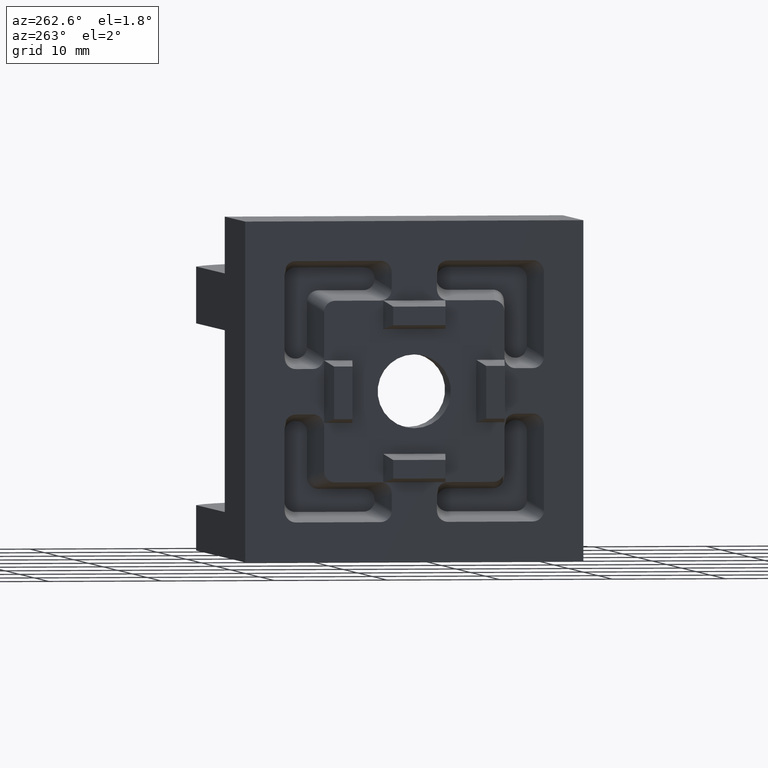
[diagram: clean part render]
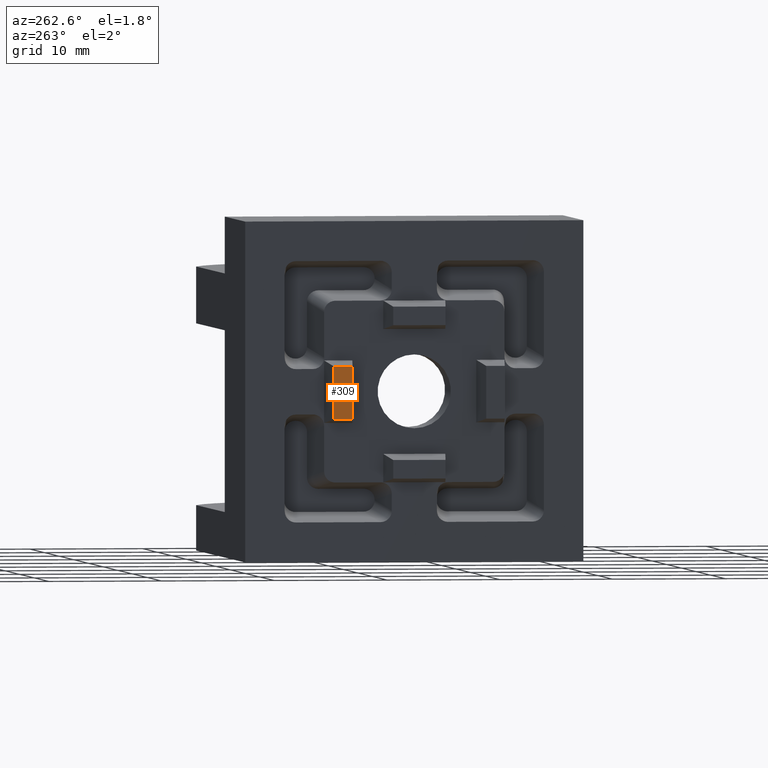
[diagram: same view with one face highlighted and labeled with its STEP entity id]
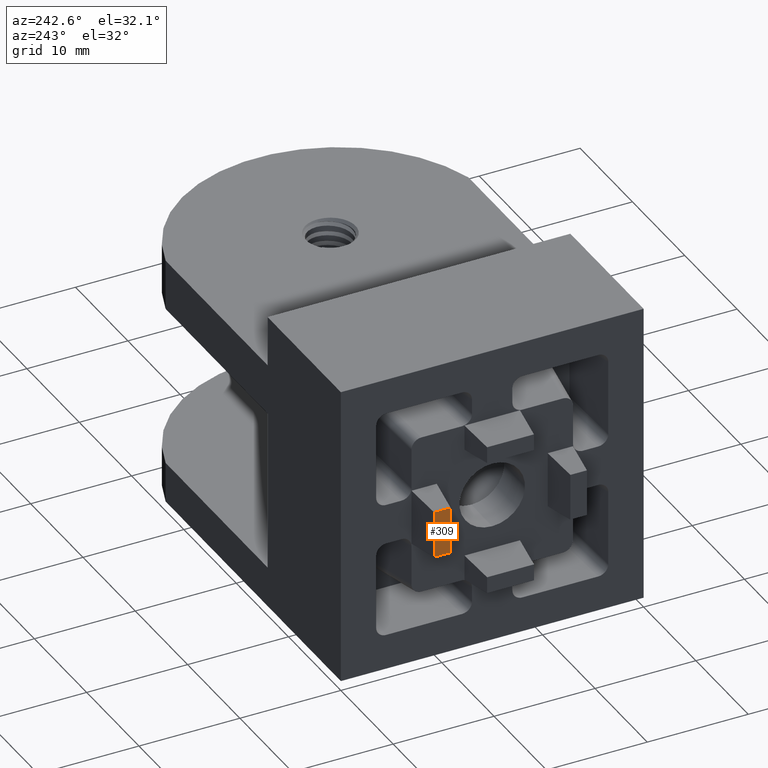
[diagram: same view with one face highlighted and labeled with its STEP entity id]
A machine part, auxiliary view. The second image highlights one B-rep face of the part: STEP entity #309.
A second angle (auxiliary view) of the same face is appended — the face is thin or edge-on in the first view.
In plain terms, the highlighted planar face has unit normal (-1, 0, 0).
Its self-contained STEP definition (entity closure, byte-faithful):
#149 = VERTEX_POINT ( 'NONE', #3906 ) ;
#205 = VERTEX_POINT ( 'NONE', #388 ) ;
#309 = ADVANCED_FACE ( 'NONE', ( #1352 ), #1938, .T. ) ;
#388 = CARTESIAN_POINT ( 'NONE',  ( -3.500000000000000000, 22.57025403723000100, -17.32025403700000200 ) ) ;
#1352 = FACE_OUTER_BOUND ( 'NONE', #2319, .T. ) ;
#1497 = AXIS2_PLACEMENT_3D ( 'NONE', #1939, #1940, #1941 ) ;
#1601 = VERTEX_POINT ( 'NONE', #3513 ) ;
#1622 = VERTEX_POINT ( 'NONE', #3534 ) ;
#1938 = PLANE ( 'NONE',  #1497 ) ;
#1939 = CARTESIAN_POINT ( 'NONE',  ( -3.500000000000000000, 20.92974596299999800, -17.32025403700000200 ) ) ;
#1940 = DIRECTION ( 'NONE',  ( -1.000000000000000000, 0.0000000000000000000, 0.0000000000000000000 ) ) ;
#1941 = DIRECTION ( 'NONE',  ( 0.0000000000000000000, 0.0000000000000000000, 1.000000000000000000 ) ) ;
#2022 = EDGE_CURVE ( 'NONE', #1601, #149, #3716, .T. ) ;
#2023 = EDGE_CURVE ( 'NONE', #205, #1601, #3718, .T. ) ;
#2024 = EDGE_CURVE ( 'NONE', #205, #1622, #3720, .T. ) ;
#2025 = EDGE_CURVE ( 'NONE', #149, #1622, #3722, .T. ) ;
#2319 = EDGE_LOOP ( 'NONE', ( #3974, #3975, #3976, #3977 ) ) ;
#3271 = CARTESIAN_POINT ( 'NONE',  ( -3.500000000000000000, 21.75000000000000000, -12.67974596300000000 ) ) ;
#3272 = DIRECTION ( 'NONE',  ( -0.0000000000000000000, -1.000000000000000000, -0.0000000000000000000 ) ) ;
#3273 = CARTESIAN_POINT ( 'NONE',  ( -3.500000000000000000, 22.57025403700000200, -14.99999999999999800 ) ) ;
#3274 = DIRECTION ( 'NONE',  ( 0.0000000000000000000, 0.0000000000000000000, 1.000000000000000000 ) ) ;
#3275 = CARTESIAN_POINT ( 'NONE',  ( -3.500000000000000000, 21.75000000000000000, -17.32025403700000200 ) ) ;
#3276 = DIRECTION ( 'NONE',  ( -0.0000000000000000000, -1.000000000000000000, -0.0000000000000000000 ) ) ;
#3277 = CARTESIAN_POINT ( 'NONE',  ( -3.500000000000000000, 20.92974596299999800, -14.99999999999999800 ) ) ;
#3278 = DIRECTION ( 'NONE',  ( -0.0000000000000000000, -0.0000000000000000000, -1.000000000000000000 ) ) ;
#3513 = CARTESIAN_POINT ( 'NONE',  ( -3.500000000000000000, 22.57025403700000200, -12.67974596314199900 ) ) ;
#3534 = CARTESIAN_POINT ( 'NONE',  ( -3.499999999999999600, 20.92974596276999600, -17.32025403700000200 ) ) ;
#3716 = LINE ( 'NONE', #3271, #3717 ) ;
#3717 = VECTOR ( 'NONE', #3272, 1000.000000000000000 ) ;
#3718 = LINE ( 'NONE', #3273, #3719 ) ;
#3719 = VECTOR ( 'NONE', #3274, 1000.000000000000000 ) ;
#3720 = LINE ( 'NONE', #3275, #3721 ) ;
#3721 = VECTOR ( 'NONE', #3276, 1000.000000000000000 ) ;
#3722 = LINE ( 'NONE', #3277, #3723 ) ;
#3723 = VECTOR ( 'NONE', #3278, 1000.000000000000000 ) ;
#3906 = CARTESIAN_POINT ( 'NONE',  ( -3.500000000000000000, 20.92974596276999600, -12.67974596300000000 ) ) ;
#3974 = ORIENTED_EDGE ( 'NONE', *, *, #2022, .F. ) ;
#3975 = ORIENTED_EDGE ( 'NONE', *, *, #2023, .F. ) ;
#3976 = ORIENTED_EDGE ( 'NONE', *, *, #2024, .T. ) ;
#3977 = ORIENTED_EDGE ( 'NONE', *, *, #2025, .F. ) ;